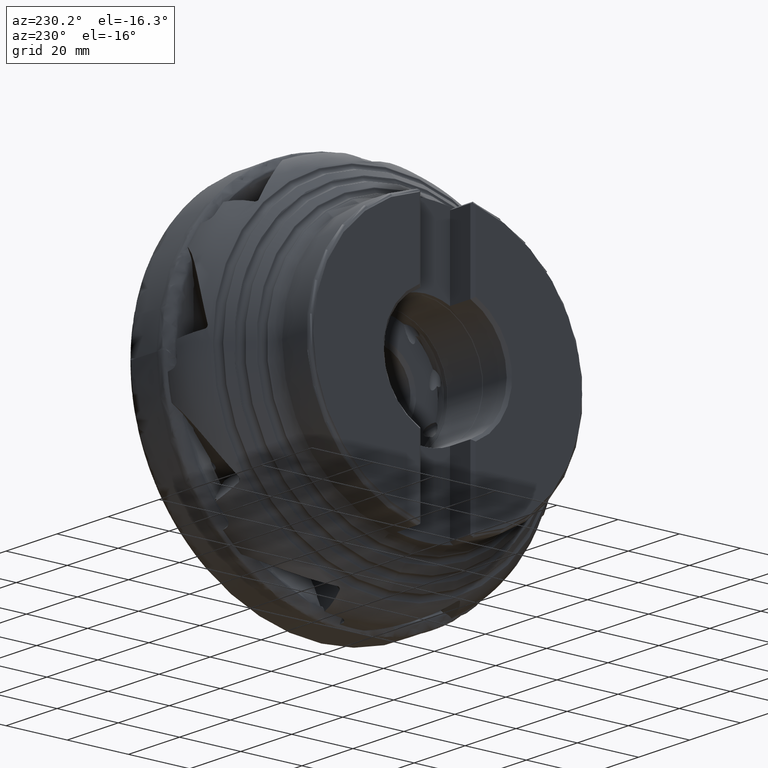
[diagram: clean part render]
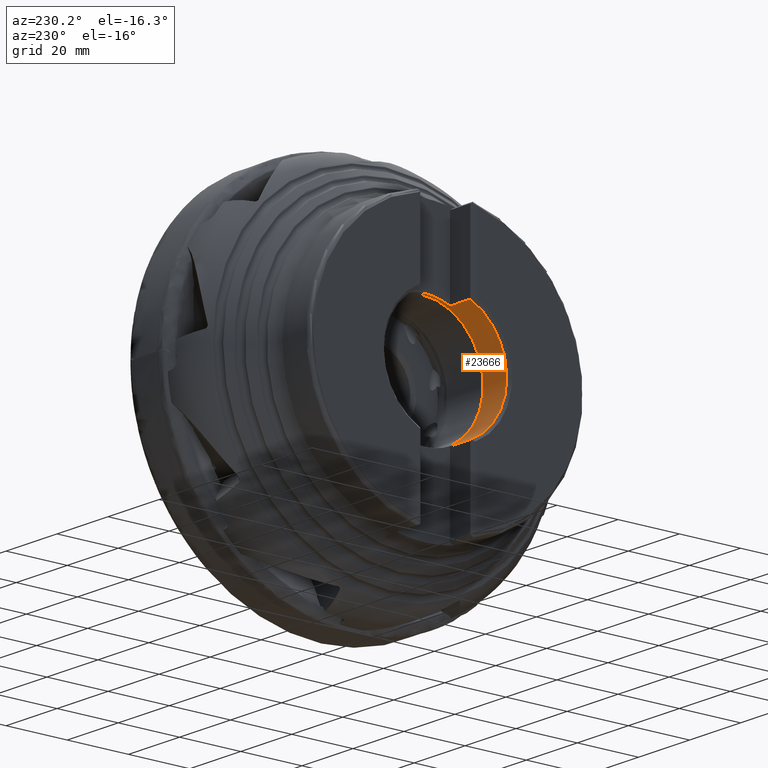
[diagram: same view with one face highlighted and labeled with its STEP entity id]
A machine part, auxiliary view. The second image highlights one B-rep face of the part: STEP entity #23666.
In plain terms, the highlighted cylindrical surface (partial cylindrical patch) has radius 20.075 mm, axis along (1, -0, -0).
Its self-contained STEP definition (entity closure, byte-faithful):
#242 = FACE_OUTER_BOUND ( 'NONE', #5835, .T. ) ;
#458 = AXIS2_PLACEMENT_3D ( 'NONE', #14369, #14203, #18129 ) ;
#730 = VERTEX_POINT ( 'NONE', #4757 ) ;
#1283 = DIRECTION ( 'NONE',  ( 0.0000000000000000000, 0.0000000000000000000, -1.000000000000000000 ) ) ;
#1287 = VECTOR ( 'NONE', #1425, 1000.000000000000000 ) ;
#1298 = DIRECTION ( 'NONE',  ( 1.000000000000000000, -0.0000000000000000000, -0.0000000000000000000 ) ) ;
#1316 = CIRCLE ( 'NONE', #15998, 20.07499999999999600 ) ;
#1425 = DIRECTION ( 'NONE',  ( -1.000000000000000000, 0.0000000000000000000, 0.0000000000000000000 ) ) ;
#1749 = VECTOR ( 'NONE', #5671, 1000.000000000000000 ) ;
#1835 = CARTESIAN_POINT ( 'NONE',  ( 0.0000000000000000000, 2.458478449288310900E-015, 20.07499999999999600 ) ) ;
#1859 = ORIENTED_EDGE ( 'NONE', *, *, #9025, .T. ) ;
#3444 = DIRECTION ( 'NONE',  ( 1.000000000000000000, -0.0000000000000000000, -0.0000000000000000000 ) ) ;
#4323 = LINE ( 'NONE', #1835, #18712 ) ;
#4757 = CARTESIAN_POINT ( 'NONE',  ( -48.25000000000000000, -8.200000000000008200, -18.32390856231278400 ) ) ;
#4763 = EDGE_CURVE ( 'NONE', #14858, #11574, #20188, .T. ) ;
#4998 = CARTESIAN_POINT ( 'NONE',  ( -40.25000000000000000, -8.200000000000020600, 18.32390856231277400 ) ) ;
#5066 = CIRCLE ( 'NONE', #6100, 20.07499999999999600 ) ;
#5671 = DIRECTION ( 'NONE',  ( 1.000000000000000000, -0.0000000000000000000, -0.0000000000000000000 ) ) ;
#5835 = EDGE_LOOP ( 'NONE', ( #19270, #8615, #23636, #7589, #8848, #1859, #12232, #19867 ) ) ;
#6100 = AXIS2_PLACEMENT_3D ( 'NONE', #14851, #16606, #6881 ) ;
#6640 = EDGE_CURVE ( 'NONE', #17320, #15017, #18890, .T. ) ;
#6881 = DIRECTION ( 'NONE',  ( 0.0000000000000000000, 0.0000000000000000000, -1.000000000000000000 ) ) ;
#7439 = CARTESIAN_POINT ( 'NONE',  ( -39.00000000000000000, 0.0000000000000000000, -20.07499999999999600 ) ) ;
#7544 = VERTEX_POINT ( 'NONE', #25037 ) ;
#7589 = ORIENTED_EDGE ( 'NONE', *, *, #6640, .F. ) ;
#8274 = VERTEX_POINT ( 'NONE', #23864 ) ;
#8523 = EDGE_CURVE ( 'NONE', #17320, #8274, #5066, .T. ) ;
#8555 = EDGE_CURVE ( 'NONE', #23891, #15017, #1316, .T. ) ;
#8615 = ORIENTED_EDGE ( 'NONE', *, *, #22956, .T. ) ;
#8848 = ORIENTED_EDGE ( 'NONE', *, *, #8523, .T. ) ;
#9025 = EDGE_CURVE ( 'NONE', #8274, #730, #9087, .T. ) ;
#9087 = LINE ( 'NONE', #9341, #1287 ) ;
#9341 = CARTESIAN_POINT ( 'NONE',  ( -3.556183125752463200E-015, -8.200000000000020600, -18.32390856231277400 ) ) ;
#9673 = CARTESIAN_POINT ( 'NONE',  ( -3.556183125752463200E-015, -8.200000000000020600, 18.32390856231277400 ) ) ;
#9815 = DIRECTION ( 'NONE',  ( 0.0000000000000000000, 3.552713678800500100E-015, -1.000000000000000000 ) ) ;
#11137 = CIRCLE ( 'NONE', #458, 20.07499999999999200 ) ;
#11574 = VERTEX_POINT ( 'NONE', #4998 ) ;
#12232 = ORIENTED_EDGE ( 'NONE', *, *, #24410, .F. ) ;
#12397 = CYLINDRICAL_SURFACE ( 'NONE', #22823, 20.07499999999999600 ) ;
#13145 = DIRECTION ( 'NONE',  ( 1.000000000000000000, -0.0000000000000000000, -0.0000000000000000000 ) ) ;
#13567 = VECTOR ( 'NONE', #3444, 1000.000000000000000 ) ;
#13852 = CARTESIAN_POINT ( 'NONE',  ( -40.25000000000000000, 0.0000000000000000000, 0.0000000000000000000 ) ) ;
#14203 = DIRECTION ( 'NONE',  ( 1.000000000000000000, -0.0000000000000000000, -0.0000000000000000000 ) ) ;
#14369 = CARTESIAN_POINT ( 'NONE',  ( -48.25000000000000000, 0.0000000000000000000, 0.0000000000000000000 ) ) ;
#14762 = CIRCLE ( 'NONE', #17573, 20.07499999999999600 ) ;
#14851 = CARTESIAN_POINT ( 'NONE',  ( -40.25000000000000000, 0.0000000000000000000, 0.0000000000000000000 ) ) ;
#14858 = VERTEX_POINT ( 'NONE', #17163 ) ;
#15017 = VERTEX_POINT ( 'NONE', #7439 ) ;
#15438 = CARTESIAN_POINT ( 'NONE',  ( -39.00000000000000000, 0.0000000000000000000, 0.0000000000000000000 ) ) ;
#15998 = AXIS2_PLACEMENT_3D ( 'NONE', #15438, #1298, #17285 ) ;
#16606 = DIRECTION ( 'NONE',  ( -1.000000000000000000, -0.0000000000000000000, -0.0000000000000000000 ) ) ;
#17163 = CARTESIAN_POINT ( 'NONE',  ( -48.25000000000000000, -8.200000000000002800, 18.32390856231275900 ) ) ;
#17285 = DIRECTION ( 'NONE',  ( 0.0000000000000000000, 0.0000000000000000000, -1.000000000000000000 ) ) ;
#17320 = VERTEX_POINT ( 'NONE', #25887 ) ;
#17573 = AXIS2_PLACEMENT_3D ( 'NONE', #13852, #25626, #9815 ) ;
#18129 = DIRECTION ( 'NONE',  ( 0.0000000000000000000, 0.0000000000000000000, -1.000000000000000000 ) ) ;
#18712 = VECTOR ( 'NONE', #19850, 1000.000000000000000 ) ;
#18883 = EDGE_CURVE ( 'NONE', #11574, #7544, #14762, .T. ) ;
#18890 = LINE ( 'NONE', #23608, #13567 ) ;
#18933 = CARTESIAN_POINT ( 'NONE',  ( 0.0000000000000000000, 0.0000000000000000000, 0.0000000000000000000 ) ) ;
#19270 = ORIENTED_EDGE ( 'NONE', *, *, #18883, .T. ) ;
#19850 = DIRECTION ( 'NONE',  ( 1.000000000000000000, -0.0000000000000000000, -0.0000000000000000000 ) ) ;
#19867 = ORIENTED_EDGE ( 'NONE', *, *, #4763, .T. ) ;
#20188 = LINE ( 'NONE', #9673, #1749 ) ;
#22823 = AXIS2_PLACEMENT_3D ( 'NONE', #18933, #13145, #1283 ) ;
#22956 = EDGE_CURVE ( 'NONE', #7544, #23891, #4323, .T. ) ;
#23608 = CARTESIAN_POINT ( 'NONE',  ( 0.0000000000000000000, 0.0000000000000000000, -20.07499999999999600 ) ) ;
#23636 = ORIENTED_EDGE ( 'NONE', *, *, #8555, .T. ) ;
#23666 = ADVANCED_FACE ( 'NONE', ( #242 ), #12397, .F. ) ;
#23864 = CARTESIAN_POINT ( 'NONE',  ( -40.25000000000000000, -8.200000000000006400, -18.32390856231278800 ) ) ;
#23891 = VERTEX_POINT ( 'NONE', #25281 ) ;
#24410 = EDGE_CURVE ( 'NONE', #14858, #730, #11137, .T. ) ;
#25037 = CARTESIAN_POINT ( 'NONE',  ( -40.25000000000000000, 2.458478449288310900E-015, 20.07499999999999600 ) ) ;
#25281 = CARTESIAN_POINT ( 'NONE',  ( -39.00000000000000000, 2.458478449288310900E-015, 20.07499999999999600 ) ) ;
#25626 = DIRECTION ( 'NONE',  ( -1.000000000000000000, -0.0000000000000000000, -0.0000000000000000000 ) ) ;
#25887 = CARTESIAN_POINT ( 'NONE',  ( -40.25000000000000000, 0.0000000000000000000, -20.07499999999999600 ) ) ;